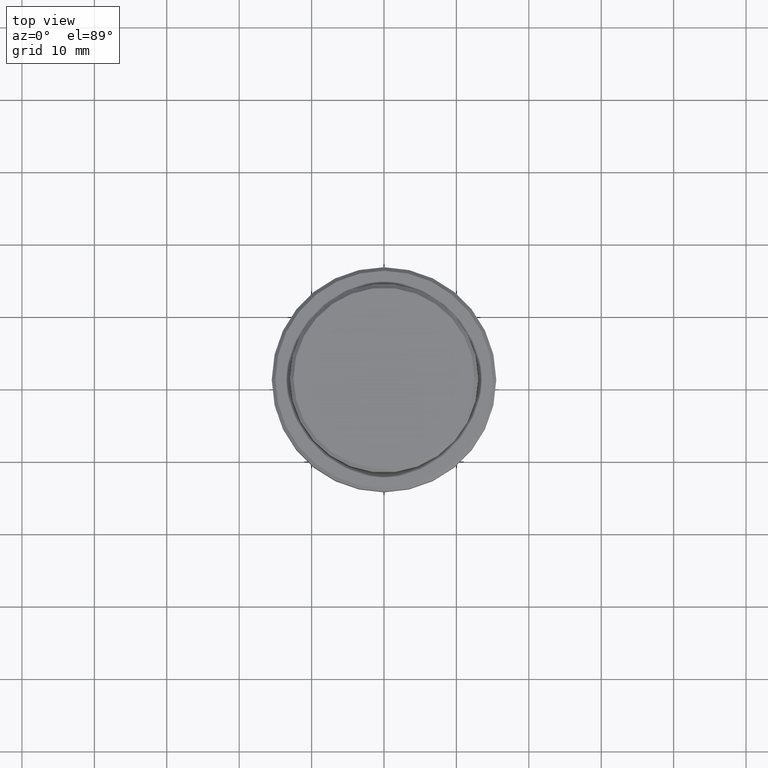
[diagram: clean part render]
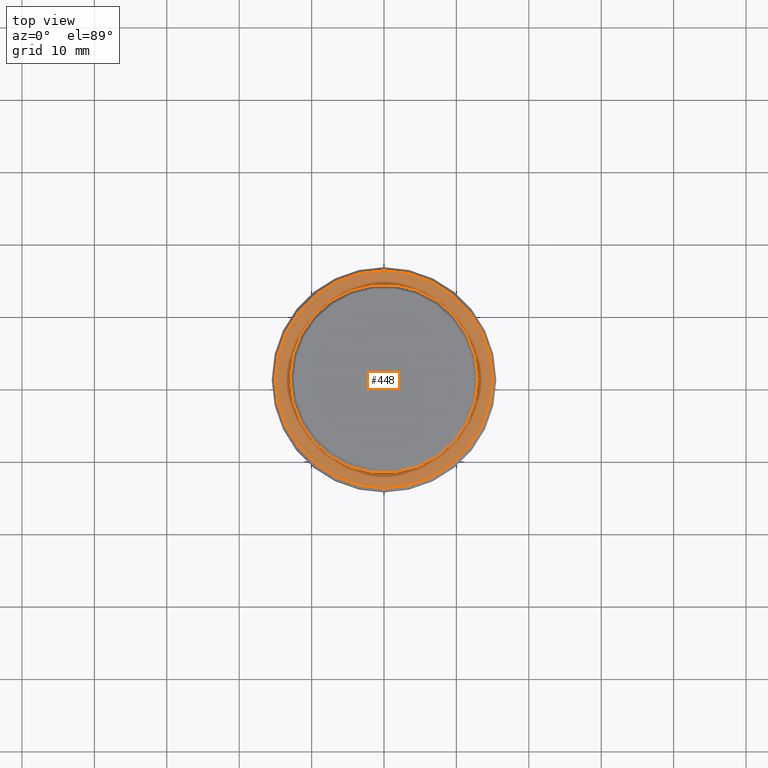
[diagram: same view with one face highlighted and labeled with its STEP entity id]
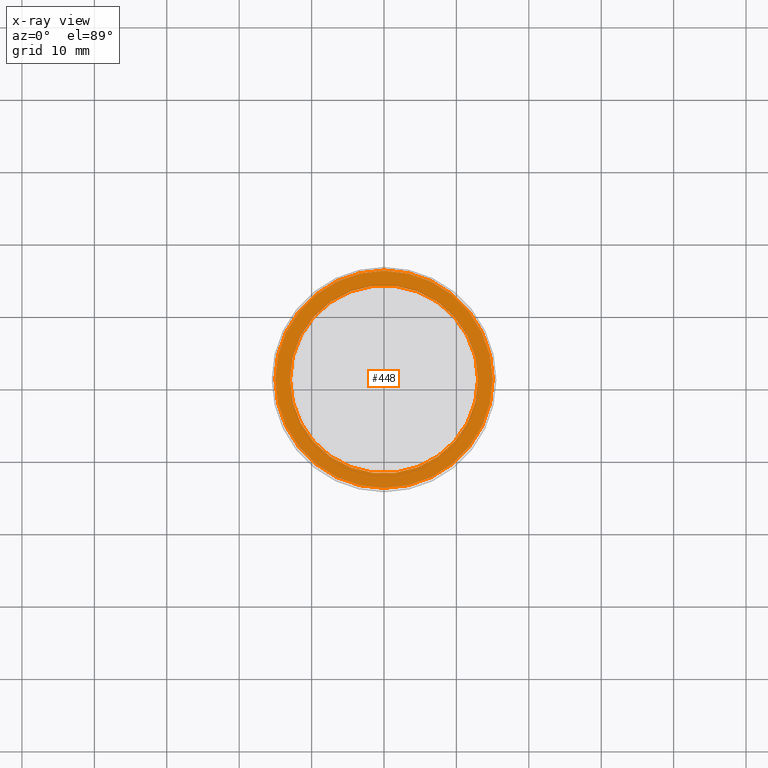
[diagram: x-ray of the same camera — body ghosted, the highlighted face saturated]
A machine part, top view. The second image highlights one B-rep face of the part: STEP entity #448.
The next image is the same camera in x-ray: the body ghosted, the highlighted face saturated — about 0% of this face is hidden behind the body in this view.
In plain terms, the highlighted planar face has unit normal (0, -0, 1).
Its self-contained STEP definition (entity closure, byte-faithful):
#62 = AXIS2_PLACEMENT_3D ( 'NONE', #813, #387, #147 ) ;
#90 = DIRECTION ( 'NONE',  ( 0.000000000000000000, 0.000000000000000000, -1.000000000000000000 ) ) ;
#147 = DIRECTION ( 'NONE',  ( 1.000000000000000000, 0.000000000000000000, 0.000000000000000000 ) ) ;
#177 = CIRCLE ( 'NONE', #980, 12.99999999999999467 ) ;
#184 = PLANE ( 'NONE',  #545 ) ;
#256 = CARTESIAN_POINT ( 'NONE',  ( 0.000000000000000000, 0.000000000000000000, -8.999999999999998224 ) ) ;
#261 = EDGE_CURVE ( 'NONE', #314, #1336, #678, .T. ) ;
#288 = ORIENTED_EDGE ( 'NONE', *, *, #1178, .T. ) ;
#304 = FACE_OUTER_BOUND ( 'NONE', #1237, .T. ) ;
#314 = VERTEX_POINT ( 'NONE', #947 ) ;
#366 = DIRECTION ( 'NONE',  ( 1.000000000000000000, 0.000000000000000000, 0.000000000000000000 ) ) ;
#387 = DIRECTION ( 'NONE',  ( -0.000000000000000000, -0.000000000000000000, 1.000000000000000000 ) ) ;
#393 = CARTESIAN_POINT ( 'NONE',  ( 0.000000000000000000, 0.000000000000000000, -8.999999999999998224 ) ) ;
#403 = ORIENTED_EDGE ( 'NONE', *, *, #446, .T. ) ;
#418 = FACE_BOUND ( 'NONE', #767, .T. ) ;
#446 = EDGE_CURVE ( 'NONE', #737, #1037, #177, .T. ) ;
#448 = ADVANCED_FACE ( 'NONE', ( #304, #418 ), #184, .T. ) ;
#480 = CARTESIAN_POINT ( 'NONE',  ( 12.99999999999999467, 0.000000000000000000, -8.999999999999998224 ) ) ;
#545 = AXIS2_PLACEMENT_3D ( 'NONE', #1285, #1064, #733 ) ;
#630 = CARTESIAN_POINT ( 'NONE',  ( -15.00000000000000000, 0.000000000000000000, -8.999999999999998224 ) ) ;
#678 = CIRCLE ( 'NONE', #1042, 15.00000000000000000 ) ;
#733 = DIRECTION ( 'NONE',  ( 1.000000000000000000, 0.000000000000000000, 0.000000000000000000 ) ) ;
#737 = VERTEX_POINT ( 'NONE', #480 ) ;
#767 = EDGE_LOOP ( 'NONE', ( #403, #288 ) ) ;
#776 = EDGE_CURVE ( 'NONE', #1336, #314, #1294, .T. ) ;
#813 = CARTESIAN_POINT ( 'NONE',  ( 0.000000000000000000, 0.000000000000000000, -8.999999999999998224 ) ) ;
#888 = CARTESIAN_POINT ( 'NONE',  ( -12.99999999999999467, 1.592040838891558504E-15, -8.999999999999998224 ) ) ;
#912 = DIRECTION ( 'NONE',  ( -0.000000000000000000, -0.000000000000000000, 1.000000000000000000 ) ) ;
#928 = ORIENTED_EDGE ( 'NONE', *, *, #261, .T. ) ;
#947 = CARTESIAN_POINT ( 'NONE',  ( 15.00000000000000000, 1.867586368699713376E-15, -8.999999999999998224 ) ) ;
#980 = AXIS2_PLACEMENT_3D ( 'NONE', #393, #90, #1278 ) ;
#1037 = VERTEX_POINT ( 'NONE', #888 ) ;
#1042 = AXIS2_PLACEMENT_3D ( 'NONE', #1328, #912, #366 ) ;
#1064 = DIRECTION ( 'NONE',  ( 0.000000000000000000, -0.000000000000000000, 1.000000000000000000 ) ) ;
#1158 = CIRCLE ( 'NONE', #1340, 12.99999999999999467 ) ;
#1175 = DIRECTION ( 'NONE',  ( 1.000000000000000000, 0.000000000000000000, 0.000000000000000000 ) ) ;
#1178 = EDGE_CURVE ( 'NONE', #1037, #737, #1158, .T. ) ;
#1237 = EDGE_LOOP ( 'NONE', ( #1370, #928 ) ) ;
#1238 = DIRECTION ( 'NONE',  ( 0.000000000000000000, 0.000000000000000000, -1.000000000000000000 ) ) ;
#1278 = DIRECTION ( 'NONE',  ( 1.000000000000000000, 0.000000000000000000, 0.000000000000000000 ) ) ;
#1285 = CARTESIAN_POINT ( 'NONE',  ( 0.000000000000000000, 12.49999999999999289, -8.999999999999998224 ) ) ;
#1294 = CIRCLE ( 'NONE', #62, 15.00000000000000000 ) ;
#1328 = CARTESIAN_POINT ( 'NONE',  ( 0.000000000000000000, 0.000000000000000000, -8.999999999999998224 ) ) ;
#1336 = VERTEX_POINT ( 'NONE', #630 ) ;
#1340 = AXIS2_PLACEMENT_3D ( 'NONE', #256, #1238, #1175 ) ;
#1370 = ORIENTED_EDGE ( 'NONE', *, *, #776, .T. ) ;